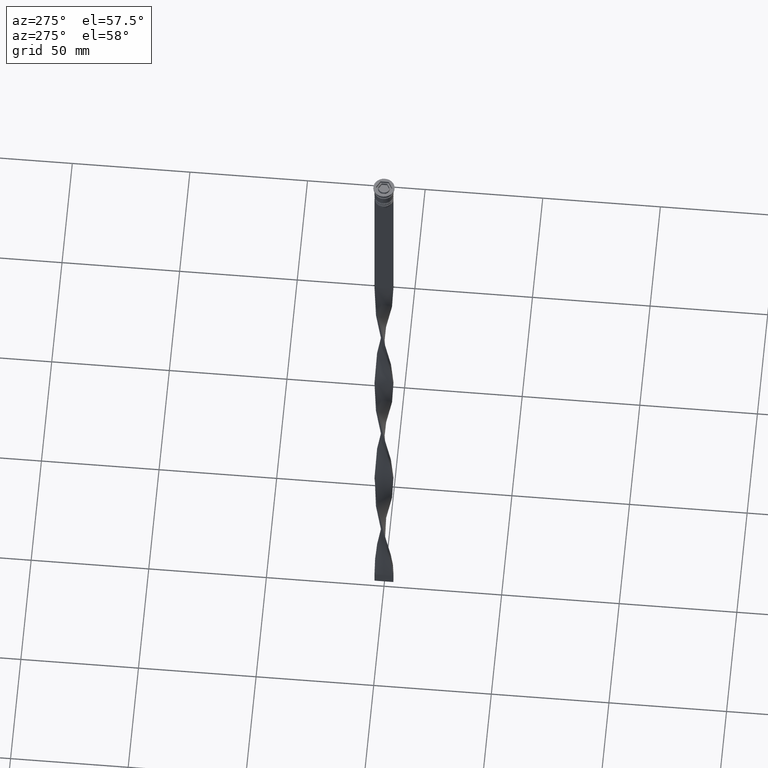
[diagram: clean part render]
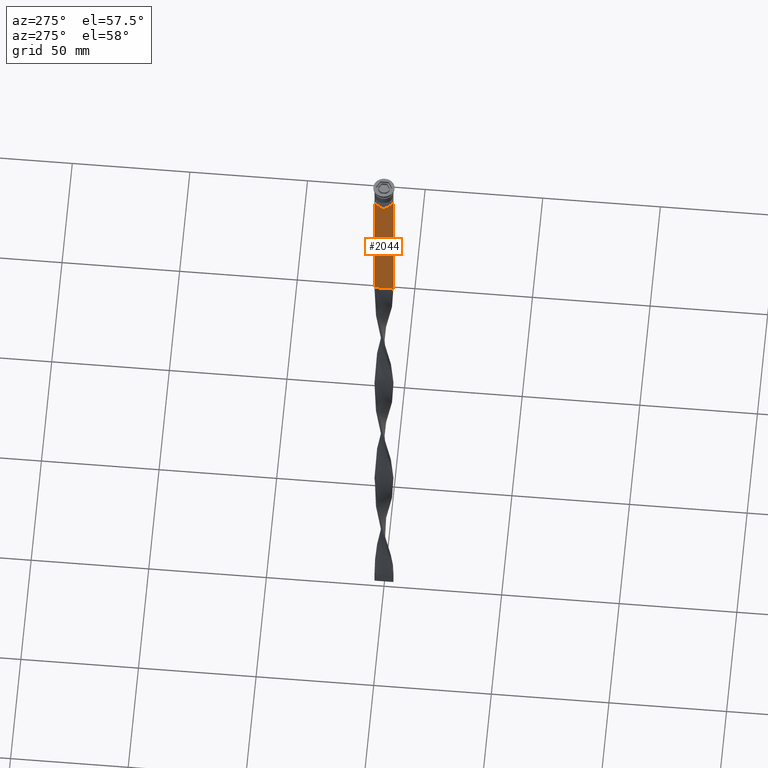
[diagram: same view with one face highlighted and labeled with its STEP entity id]
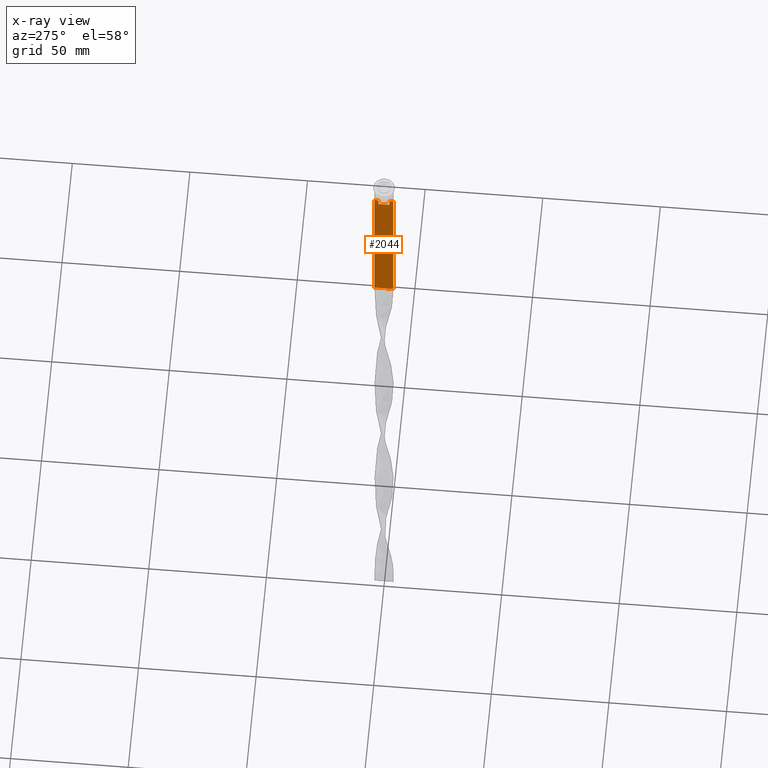
[diagram: x-ray of the same camera — body ghosted, the highlighted face saturated]
A machine part, auxiliary view. The second image highlights one B-rep face of the part: STEP entity #2044.
The next image is the same camera in x-ray: the body ghosted, the highlighted face saturated — about 0% of this face is hidden behind the body in this view.
In plain terms, the highlighted planar face has unit normal (-1, 0, 0).
Its self-contained STEP definition (entity closure, byte-faithful):
#55 = ORIENTED_EDGE ( 'NONE', *, *, #2089, .T. ) ;
#85 = CARTESIAN_POINT ( 'NONE',  ( -0.5000000000000000000, -4.000000000000000000, -9.500000000000000000 ) ) ;
#133 = CARTESIAN_POINT ( 'NONE',  ( -0.5000000000000000000, 4.000000000000000000, -1.437742251701450202 ) ) ;
#138 = CARTESIAN_POINT ( 'NONE',  ( -0.5000000000000000000, 2.347338918861097135, -10.00000000000000000 ) ) ;
#143 = EDGE_CURVE ( 'NONE', #3910, #462, #1053, .T. ) ;
#154 = VECTOR ( 'NONE', #794, 1000.000000000000000 ) ;
#163 = CARTESIAN_POINT ( 'NONE',  ( -0.5000000000000000000, 2.687094542495897631, -9.666938847453439010 ) ) ;
#173 = EDGE_CURVE ( 'NONE', #3032, #1529, #778, .T. ) ;
#189 = CARTESIAN_POINT ( 'NONE',  ( -0.5000000000000000000, -4.000000000000000000, -9.500000000000000000 ) ) ;
#356 = CARTESIAN_POINT ( 'NONE',  ( -0.5000000000000000000, 3.867815921162741422, -9.500000000000000000 ) ) ;
#414 = CARTESIAN_POINT ( 'NONE',  ( -0.5000000000000000000, 2.347338918861097135, -12.50000000000000000 ) ) ;
#454 = DIRECTION ( 'NONE',  ( 0.000000000000000000, -1.000000000000000000, 0.000000000000000000 ) ) ;
#462 = VERTEX_POINT ( 'NONE', #1366 ) ;
#513 = CARTESIAN_POINT ( 'NONE',  ( -0.5000000000000000000, -4.000000000000000000, -78.50000000000000000 ) ) ;
#560 = CARTESIAN_POINT ( 'NONE',  ( -0.5000000000000000000, -4.000000000000000000, -1.437742251701450202 ) ) ;
#590 = EDGE_CURVE ( 'NONE', #2994, #646, #3353, .T. ) ;
#613 = VERTEX_POINT ( 'NONE', #414 ) ;
#646 = VERTEX_POINT ( 'NONE', #356 ) ;
#699 = EDGE_CURVE ( 'NONE', #1835, #2695, #3932, .T. ) ;
#720 = DIRECTION ( 'NONE',  ( 0.000000000000000000, -1.000000000000000000, 0.000000000000000000 ) ) ;
#776 = CARTESIAN_POINT ( 'NONE',  ( -0.5000000000000000000, 2.517407211010871393, -9.833663366238582171 ) ) ;
#778 = B_SPLINE_CURVE_WITH_KNOTS ( 'NONE', 3,
 ( #3506, #163, #776, #2977 ),
 .UNSPECIFIED., .F., .F.,
 ( 4, 4 ),
 ( 0.004956812174141195064, 0.005670477137898153989 ),
 .UNSPECIFIED. ) ;
#794 = DIRECTION ( 'NONE',  ( -0.000000000000000000, -0.000000000000000000, 1.000000000000000000 ) ) ;
#824 = DIRECTION ( 'NONE',  ( 0.000000000000000000, -1.000000000000000000, 0.000000000000000000 ) ) ;
#847 = LINE ( 'NONE', #1524, #1002 ) ;
#858 = ORIENTED_EDGE ( 'NONE', *, *, #864, .F. ) ;
#864 = EDGE_CURVE ( 'NONE', #3656, #2337, #3654, .T. ) ;
#898 = CARTESIAN_POINT ( 'NONE',  ( -0.5000000000000000000, -2.856571371417138572, -9.500000000000000000 ) ) ;
#979 = CARTESIAN_POINT ( 'NONE',  ( -0.5000000000000000000, -2.517408374291112416, -9.833662228483172285 ) ) ;
#980 = CARTESIAN_POINT ( 'NONE',  ( -0.5000000000000000000, -4.000000000000000000, -9.500000000000000000 ) ) ;
#992 = EDGE_CURVE ( 'NONE', #462, #1051, #1401, .T. ) ;
#996 = VECTOR ( 'NONE', #2127, 1000.000000000000000 ) ;
#1002 = VECTOR ( 'NONE', #1186, 1000.000000000000000 ) ;
#1029 = ORIENTED_EDGE ( 'NONE', *, *, #1810, .F. ) ;
#1045 = LINE ( 'NONE', #133, #3851 ) ;
#1051 = VERTEX_POINT ( 'NONE', #898 ) ;
#1053 = LINE ( 'NONE', #1432, #154 ) ;
#1183 = ORIENTED_EDGE ( 'NONE', *, *, #699, .F. ) ;
#1186 = DIRECTION ( 'NONE',  ( 0.000000000000000000, -1.000000000000000000, 0.000000000000000000 ) ) ;
#1187 = EDGE_LOOP ( 'NONE', ( #1757, #1958, #1519, #55, #858, #1029, #1183, #2049, #1442, #3738, #1602, #2678 ) ) ;
#1286 = CARTESIAN_POINT ( 'NONE',  ( -0.5000000000000000000, -2.347338918861097135, -10.00000000000000000 ) ) ;
#1294 = PLANE ( 'NONE',  #1721 ) ;
#1366 = CARTESIAN_POINT ( 'NONE',  ( -0.5000000000000000000, -2.347338918861097135, -10.00000000000000000 ) ) ;
#1401 = B_SPLINE_CURVE_WITH_KNOTS ( 'NONE', 3,
 ( #1286, #979, #1574, #2546 ),
 .UNSPECIFIED., .F., .F.,
 ( 4, 4 ),
 ( 0.01178336557230038641, 0.01249758354768160454 ),
 .UNSPECIFIED. ) ;
#1432 = CARTESIAN_POINT ( 'NONE',  ( -0.5000000000000000000, -2.347338918861097135, 0.000000000000000000 ) ) ;
#1442 = ORIENTED_EDGE ( 'NONE', *, *, #992, .F. ) ;
#1515 = LINE ( 'NONE', #2099, #2592 ) ;
#1519 = ORIENTED_EDGE ( 'NONE', *, *, #590, .F. ) ;
#1524 = CARTESIAN_POINT ( 'NONE',  ( -0.5000000000000000000, 2.399999999999996803, -12.50000000000000000 ) ) ;
#1529 = VERTEX_POINT ( 'NONE', #138 ) ;
#1574 = CARTESIAN_POINT ( 'NONE',  ( -0.5000000000000000000, -2.687095498514037839, -9.666937905752043037 ) ) ;
#1602 = ORIENTED_EDGE ( 'NONE', *, *, #1691, .F. ) ;
#1659 = DIRECTION ( 'NONE',  ( 0.000000000000000000, 0.000000000000000000, -1.000000000000000000 ) ) ;
#1691 = EDGE_CURVE ( 'NONE', #613, #3910, #847, .T. ) ;
#1721 = AXIS2_PLACEMENT_3D ( 'NONE', #3913, #2319, #1986 ) ;
#1757 = ORIENTED_EDGE ( 'NONE', *, *, #173, .F. ) ;
#1770 = CARTESIAN_POINT ( 'NONE',  ( -0.5000000000000000000, -4.000000000000000000, -9.500000000000000000 ) ) ;
#1810 = EDGE_CURVE ( 'NONE', #2695, #3656, #3386, .T. ) ;
#1834 = LINE ( 'NONE', #1770, #2191 ) ;
#1835 = VERTEX_POINT ( 'NONE', #4044 ) ;
#1958 = ORIENTED_EDGE ( 'NONE', *, *, #2393, .F. ) ;
#1986 = DIRECTION ( 'NONE',  ( 0.000000000000000000, 0.000000000000000000, 1.000000000000000000 ) ) ;
#2044 = ADVANCED_FACE ( 'NONE', ( #2867 ), #1294, .T. ) ;
#2049 = ORIENTED_EDGE ( 'NONE', *, *, #2367, .F. ) ;
#2086 = LINE ( 'NONE', #4036, #2925 ) ;
#2089 = EDGE_CURVE ( 'NONE', #2994, #2337, #1045, .T. ) ;
#2099 = CARTESIAN_POINT ( 'NONE',  ( -0.5000000000000000000, 2.347338918861097135, 0.000000000000000000 ) ) ;
#2127 = DIRECTION ( 'NONE',  ( 0.000000000000000000, 1.000000000000000000, 0.000000000000000000 ) ) ;
#2132 = DIRECTION ( 'NONE',  ( 0.000000000000000000, 0.000000000000000000, -1.000000000000000000 ) ) ;
#2191 = VECTOR ( 'NONE', #824, 1000.000000000000000 ) ;
#2216 = CARTESIAN_POINT ( 'NONE',  ( -0.5000000000000000000, 2.856571371417138572, -9.500000000000000000 ) ) ;
#2319 = DIRECTION ( 'NONE',  ( -1.000000000000000000, 0.000000000000000000, 0.000000000000000000 ) ) ;
#2337 = VERTEX_POINT ( 'NONE', #3400 ) ;
#2367 = EDGE_CURVE ( 'NONE', #1051, #1835, #1834, .T. ) ;
#2393 = EDGE_CURVE ( 'NONE', #646, #3032, #2086, .T. ) ;
#2465 = CARTESIAN_POINT ( 'NONE',  ( -0.5000000000000000000, -4.000000000000000000, -78.50000000000000000 ) ) ;
#2546 = CARTESIAN_POINT ( 'NONE',  ( -0.5000000000000000000, -2.856571371417138572, -9.500000000000000000 ) ) ;
#2592 = VECTOR ( 'NONE', #3992, 1000.000000000000000 ) ;
#2678 = ORIENTED_EDGE ( 'NONE', *, *, #3288, .F. ) ;
#2695 = VERTEX_POINT ( 'NONE', #980 ) ;
#2780 = VECTOR ( 'NONE', #2132, 1000.000000000000000 ) ;
#2834 = CARTESIAN_POINT ( 'NONE',  ( -0.5000000000000000000, 4.000000000000000000, -9.500000000000000000 ) ) ;
#2867 = FACE_OUTER_BOUND ( 'NONE', #1187, .T. ) ;
#2925 = VECTOR ( 'NONE', #3355, 1000.000000000000000 ) ;
#2977 = CARTESIAN_POINT ( 'NONE',  ( -0.5000000000000000000, 2.347338918861097135, -10.00000000000000000 ) ) ;
#2994 = VERTEX_POINT ( 'NONE', #2834 ) ;
#3032 = VERTEX_POINT ( 'NONE', #2216 ) ;
#3288 = EDGE_CURVE ( 'NONE', #1529, #613, #1515, .T. ) ;
#3353 = LINE ( 'NONE', #85, #3706 ) ;
#3355 = DIRECTION ( 'NONE',  ( 0.000000000000000000, -1.000000000000000000, 0.000000000000000000 ) ) ;
#3386 = LINE ( 'NONE', #560, #2780 ) ;
#3400 = CARTESIAN_POINT ( 'NONE',  ( -0.5000000000000000000, 4.000000000000000000, -78.50000000000000000 ) ) ;
#3451 = CARTESIAN_POINT ( 'NONE',  ( -0.5000000000000000000, -2.347338918861097135, -12.50000000000000000 ) ) ;
#3506 = CARTESIAN_POINT ( 'NONE',  ( -0.5000000000000000000, 2.856571371417138572, -9.500000000000000000 ) ) ;
#3579 = VECTOR ( 'NONE', #454, 1000.000000000000000 ) ;
#3654 = LINE ( 'NONE', #513, #996 ) ;
#3656 = VERTEX_POINT ( 'NONE', #2465 ) ;
#3706 = VECTOR ( 'NONE', #720, 1000.000000000000000 ) ;
#3738 = ORIENTED_EDGE ( 'NONE', *, *, #143, .F. ) ;
#3851 = VECTOR ( 'NONE', #1659, 1000.000000000000000 ) ;
#3910 = VERTEX_POINT ( 'NONE', #3451 ) ;
#3913 = CARTESIAN_POINT ( 'NONE',  ( -0.5000000000000000000, -4.000000000000000000, -1.437742251701450202 ) ) ;
#3932 = LINE ( 'NONE', #189, #3579 ) ;
#3992 = DIRECTION ( 'NONE',  ( 0.000000000000000000, 0.000000000000000000, -1.000000000000000000 ) ) ;
#4036 = CARTESIAN_POINT ( 'NONE',  ( -0.5000000000000000000, -4.000000000000000000, -9.500000000000000000 ) ) ;
#4044 = CARTESIAN_POINT ( 'NONE',  ( -0.5000000000000000000, -3.867815921162741422, -9.500000000000000000 ) ) ;